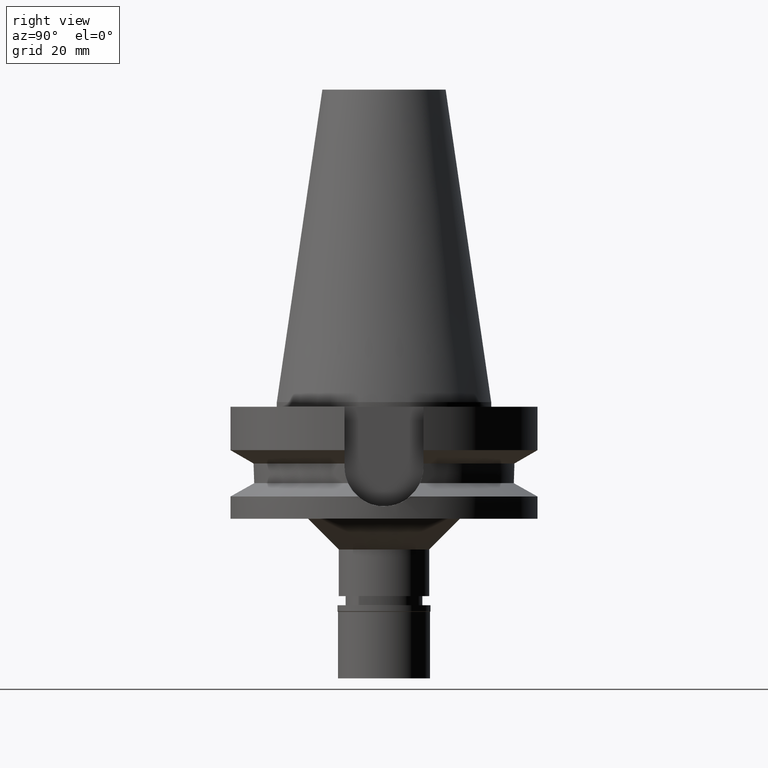
[diagram: clean part render]
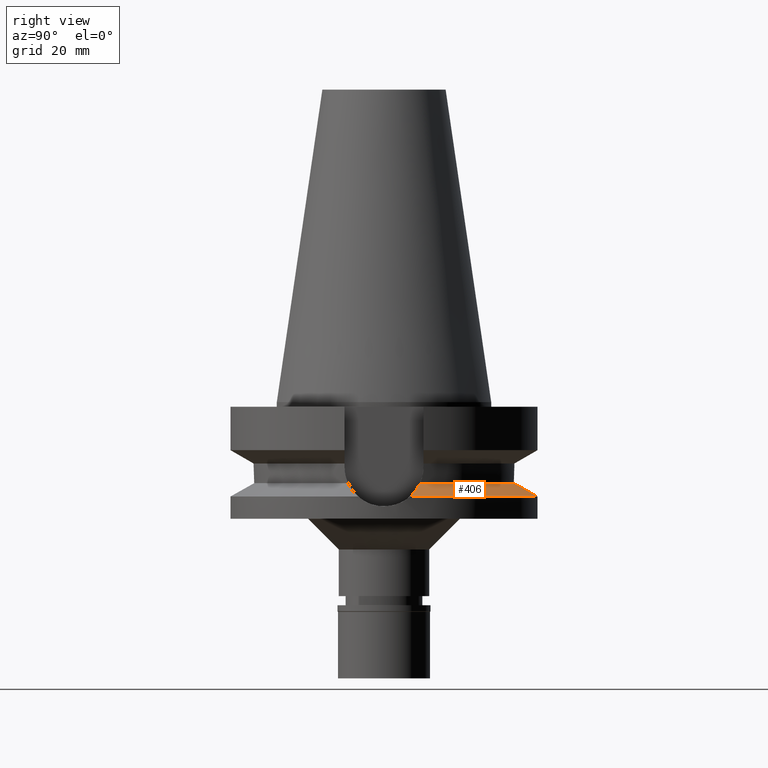
[diagram: same view with one face highlighted and labeled with its STEP entity id]
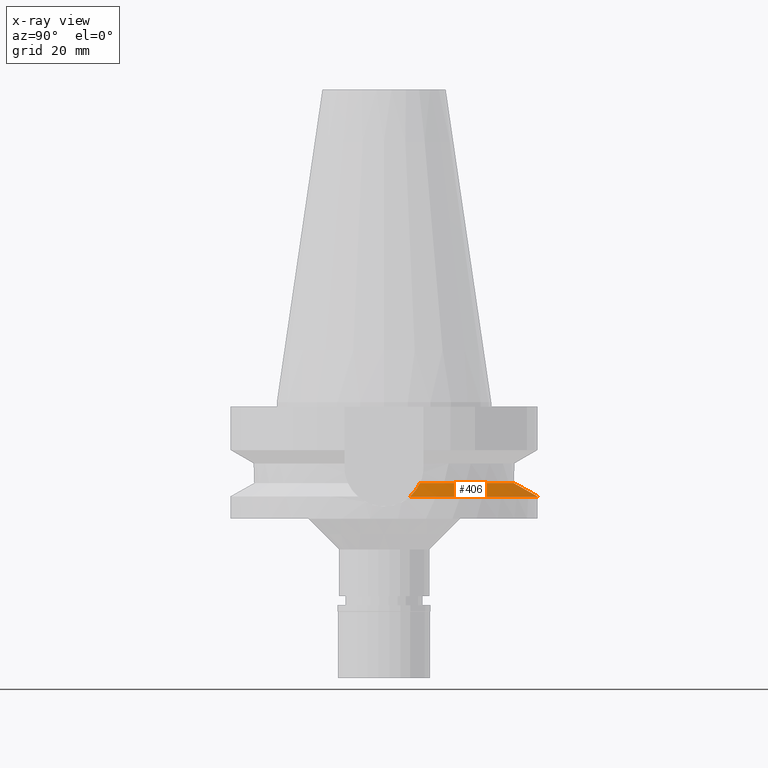
[diagram: x-ray of the same camera — body ghosted, the highlighted face saturated]
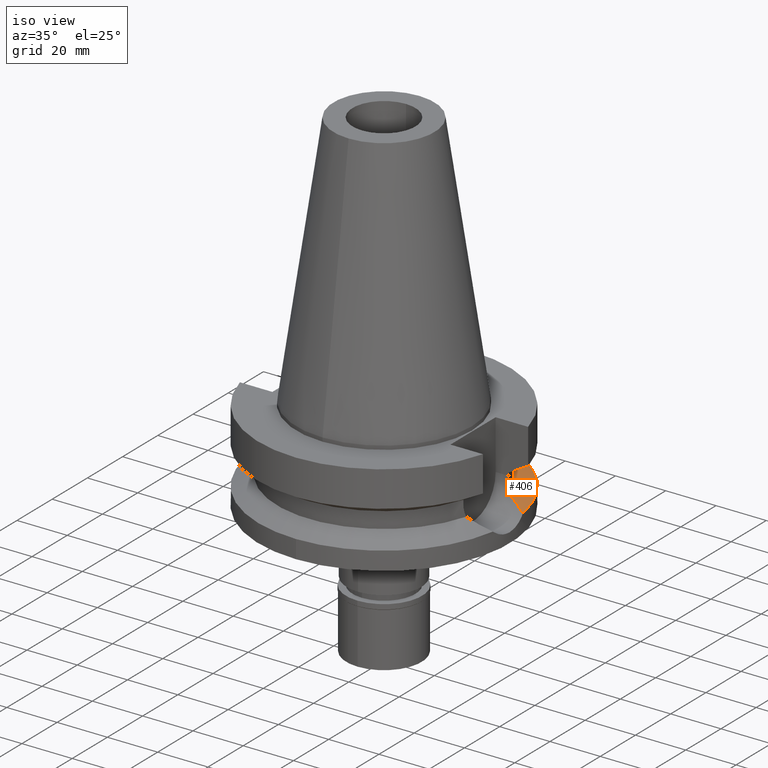
[diagram: same view with one face highlighted and labeled with its STEP entity id]
A machine part, right view. The second image highlights one B-rep face of the part: STEP entity #406.
The next image is the same camera in x-ray: the body ghosted, the highlighted face saturated — about 0% of this face is hidden behind the body in this view.
A second angle (iso view) of the same face is appended — the face is thin or edge-on in the first view.
In plain terms, the highlighted conical surface has half-angle 60 deg.
Its self-contained STEP definition (entity closure, byte-faithful):
#16 = CARTESIAN_POINT ( 'NONE',  ( -45.27634821851373914, 10.40391105507607250, -28.69204104990588178 ) ) ;
#41 = DIRECTION ( 'NONE',  ( 0.0000000000000000000, 1.000000000000000000, 0.0000000000000000000 ) ) ;
#54 = DIRECTION ( 'NONE',  ( 0.0000000000000000000, 0.0000000000000000000, -1.000000000000000000 ) ) ;
#65 = CARTESIAN_POINT ( 'NONE',  ( 45.31123041090138059, 10.39129058171987730, -28.70934102372478947 ) ) ;
#101 = CARTESIAN_POINT ( 'NONE',  ( 45.91788233851954715, 10.15819505262003553, -29.02137211855098542 ) ) ;
#225 = CARTESIAN_POINT ( 'NONE',  ( -49.26250064874000145, 8.556052234130000045, -30.73730776426999967 ) ) ;
#281 = EDGE_CURVE ( 'NONE', #2711, #2201, #385, .T. ) ;
#296 = CARTESIAN_POINT ( 'NONE',  ( 42.50583130523752118, 11.34097157914026965, -27.26454945652885087 ) ) ;
#314 = CARTESIAN_POINT ( 'NONE',  ( 43.97693828744524325, 10.88825773756050808, -28.02287518022296453 ) ) ;
#385 = CIRCLE ( 'NONE', #796, 42.50000000000000000 ) ;
#406 = ADVANCED_FACE ( 'NONE', ( #2796 ), #1865, .T. ) ;
#439 = CIRCLE ( 'NONE', #948, 50.00000000000000000 ) ;
#458 = CARTESIAN_POINT ( 'NONE',  ( -46.87935494259345148, 9.797321363119683824, -29.51663508699209615 ) ) ;
#486 = CARTESIAN_POINT ( 'NONE',  ( -48.15927121453970727, 9.189158040458943688, -30.17230177073495057 ) ) ;
#500 = DIRECTION ( 'NONE',  ( 0.0000000000000000000, 0.0000000000000000000, -1.000000000000000000 ) ) ;
#503 = CARTESIAN_POINT ( 'NONE',  ( -43.66129222606775784, 10.96113389162730201, -27.86029676454043269 ) ) ;
#535 = CARTESIAN_POINT ( 'NONE',  ( 45.34670889343192357, 10.37800447507444090, -28.72759324151313720 ) ) ;
#553 = CARTESIAN_POINT ( 'NONE',  ( 48.06851946822539645, 9.207153404535143082, -30.12574645233389958 ) ) ;
#608 = CARTESIAN_POINT ( 'NONE',  ( 0.0000000000000000000, 0.0000000000000000000, -28.57224425480999841 ) ) ;
#697 = CARTESIAN_POINT ( 'NONE',  ( -44.03034151955200315, 10.84220994096899382, -28.05054947685522393 ) ) ;
#761 = EDGE_CURVE ( 'NONE', #1598, #1262, #439, .T. ) ;
#764 = ORIENTED_EDGE ( 'NONE', *, *, #1278, .F. ) ;
#768 = CARTESIAN_POINT ( 'NONE',  ( -49.26250064874000145, 8.556052234130000045, -30.73730776426999967 ) ) ;
#773 = CARTESIAN_POINT ( 'NONE',  ( 0.0000000000000000000, 0.0000000000000000000, -30.73730776426999967 ) ) ;
#796 = AXIS2_PLACEMENT_3D ( 'NONE', #2095, #2294, #2065 ) ;
#819 = CARTESIAN_POINT ( 'NONE',  ( 45.27390061106402896, 10.40523376717388082, -28.69013600846888679 ) ) ;
#858 = CARTESIAN_POINT ( 'NONE',  ( 49.26250064874000145, 8.556052234130000045, -30.73730776426999967 ) ) ;
#948 = AXIS2_PLACEMENT_3D ( 'NONE', #1717, #500, #1470 ) ;
#1066 = CARTESIAN_POINT ( 'NONE',  ( 45.59339658389674810, 10.28443529616816043, -28.85449113462793136 ) ) ;
#1259 = CARTESIAN_POINT ( 'NONE',  ( -41.70831979503379472, 11.52617643191360663, -26.85147684288867964 ) ) ;
#1262 = VERTEX_POINT ( 'NONE', #2165 ) ;
#1278 = EDGE_CURVE ( 'NONE', #2201, #1598, #2732, .T. ) ;
#1440 = VERTEX_POINT ( 'NONE', #3001 ) ;
#1470 = DIRECTION ( 'NONE',  ( -0.9852500129747439050, 0.1711210446826074982, 0.0000000000000000000 ) ) ;
#1553 = CARTESIAN_POINT ( 'NONE',  ( 48.68866064001787208, 8.885359475363900472, -30.44342234551132620 ) ) ;
#1598 = VERTEX_POINT ( 'NONE', #768 ) ;
#1601 = EDGE_CURVE ( 'NONE', #1440, #2711, #2040, .T. ) ;
#1672 = AXIS2_PLACEMENT_3D ( 'NONE', #773, #54, #41 ) ;
#1683 = CARTESIAN_POINT ( 'NONE',  ( -44.82928235717113807, 10.56776234856484464, -28.46200222600128171 ) ) ;
#1717 = CARTESIAN_POINT ( 'NONE',  ( 0.0000000000000000000, 0.0000000000000000000, -30.73730776426999967 ) ) ;
#1778 = CIRCLE ( 'NONE', #1672, 50.00000000000000000 ) ;
#1797 = CARTESIAN_POINT ( 'NONE',  ( 47.06885596593117782, 9.672503665933867012, -29.61276978183282083 ) ) ;
#1809 = AXIS2_PLACEMENT_3D ( 'NONE', #608, #2555, #2321 ) ;
#1828 = CARTESIAN_POINT ( 'NONE',  ( 46.72405950773218564, 9.824723994150495798, -29.43570902150023016 ) ) ;
#1865 = CONICAL_SURFACE ( 'NONE', #1809, 46.25000000000000000, 1.047197551196400456 ) ;
#1902 = ORIENTED_EDGE ( 'NONE', *, *, #2644, .F. ) ;
#1958 = CARTESIAN_POINT ( 'NONE',  ( -45.38105080795718038, 10.36459315780537693, -28.74590369800099410 ) ) ;
#2038 = CARTESIAN_POINT ( 'NONE',  ( 45.28755548122458663, 10.40014020497599745, -28.69716108106556263 ) ) ;
#2040 = B_SPLINE_CURVE_WITH_KNOTS ( 'NONE', 3,
 ( #858, #1553, #553, #1797, #1828, #2307, #101, #1066, #2479, #535, #65, #2038, #819, #314, #296, #2066 ),
 .UNSPECIFIED., .F., .F.,
 ( 4, 2, 2, 1, 1, 1, 1, 2, 2, 4 ),
 ( 0.0000000000000000000, 0.2499999999999621414, 0.3749999999999424349, 0.4374999999999324429, 0.4687499999999276135, 0.4843749999999260036, 0.4921874999999251155, 0.4960937499999246714, 0.4999999999999241718, 1.000000000000000000 ),
 .UNSPECIFIED. ) ;
#2065 = DIRECTION ( 'NONE',  ( 0.0000000000000000000, 1.000000000000000000, 0.0000000000000000000 ) ) ;
#2066 = CARTESIAN_POINT ( 'NONE',  ( 40.85052569294000335, 11.72538061688000077, -26.40718074535000426 ) ) ;
#2095 = CARTESIAN_POINT ( 'NONE',  ( 0.0000000000000000000, 0.0000000000000000000, -26.40718074535000426 ) ) ;
#2165 = CARTESIAN_POINT ( 'NONE',  ( 0.0000000000000000000, 50.00000000000000000, -30.73730776426999967 ) ) ;
#2201 = VERTEX_POINT ( 'NONE', #2367 ) ;
#2248 = EDGE_LOOP ( 'NONE', ( #2882, #2940, #1902, #2680, #764 ) ) ;
#2294 = DIRECTION ( 'NONE',  ( 0.0000000000000000000, 0.0000000000000000000, 1.000000000000000000 ) ) ;
#2307 = CARTESIAN_POINT ( 'NONE',  ( 46.18950188428230064, 10.04789782567043588, -29.16100294422858141 ) ) ;
#2321 = DIRECTION ( 'NONE',  ( 0.0000000000000000000, -1.000000000000000000, 0.0000000000000000000 ) ) ;
#2348 = CARTESIAN_POINT ( 'NONE',  ( 40.85052569294000335, 11.72538061688000077, -26.40718074535000426 ) ) ;
#2367 = CARTESIAN_POINT ( 'NONE',  ( -40.85052569294000335, 11.72538061688000077, -26.40718074535000426 ) ) ;
#2411 = CARTESIAN_POINT ( 'NONE',  ( -45.40191885395191917, 10.35671736996857639, -28.75663852399484099 ) ) ;
#2430 = CARTESIAN_POINT ( 'NONE',  ( -44.56596113250957103, 10.65989953730286821, -28.32643307822582202 ) ) ;
#2479 = CARTESIAN_POINT ( 'NONE',  ( 45.42925463544378317, 10.34692222316132160, -28.77005784097520191 ) ) ;
#2555 = DIRECTION ( 'NONE',  ( 0.0000000000000000000, 0.0000000000000000000, -1.000000000000000000 ) ) ;
#2644 = EDGE_CURVE ( 'NONE', #1262, #1440, #1778, .T. ) ;
#2656 = CARTESIAN_POINT ( 'NONE',  ( -45.34971367191958080, 10.37640097058377009, -28.72978322309122845 ) ) ;
#2674 = CARTESIAN_POINT ( 'NONE',  ( -45.12863543442956882, 10.45876213250612530, -28.61604514532355381 ) ) ;
#2680 = ORIENTED_EDGE ( 'NONE', *, *, #761, .F. ) ;
#2711 = VERTEX_POINT ( 'NONE', #2348 ) ;
#2732 = B_SPLINE_CURVE_WITH_KNOTS ( 'NONE', 3,
 ( #3123, #1259, #3141, #503, #697, #2430, #1683, #2674, #16, #2656, #1958, #2411, #2944, #458, #486, #225 ),
 .UNSPECIFIED., .F., .F.,
 ( 4, 2, 2, 1, 1, 1, 1, 2, 2, 4 ),
 ( 0.0000000000000000000, 0.2500000000000142664, 0.3750000000000217049, 0.4375000000000262568, 0.4687500000000296430, 0.4843750000000322520, 0.4921875000000334732, 0.4960937500000330846, 0.5000000000000326406, 1.000000000000000000 ),
 .UNSPECIFIED. ) ;
#2796 = FACE_OUTER_BOUND ( 'NONE', #2248, .T. ) ;
#2882 = ORIENTED_EDGE ( 'NONE', *, *, #281, .F. ) ;
#2940 = ORIENTED_EDGE ( 'NONE', *, *, #1601, .F. ) ;
#2944 = CARTESIAN_POINT ( 'NONE',  ( -45.41137212110677268, 10.35314443799167350, -28.76150136815438429 ) ) ;
#3001 = CARTESIAN_POINT ( 'NONE',  ( 49.26250064874000145, 8.556052234130000045, -30.73730776426999967 ) ) ;
#3123 = CARTESIAN_POINT ( 'NONE',  ( -40.85052569294000335, 11.72538061688000077, -26.40718074535000426 ) ) ;
#3141 = CARTESIAN_POINT ( 'NONE',  ( -42.51823569107745016, 11.30803590342954834, -27.27037412584214593 ) ) ;